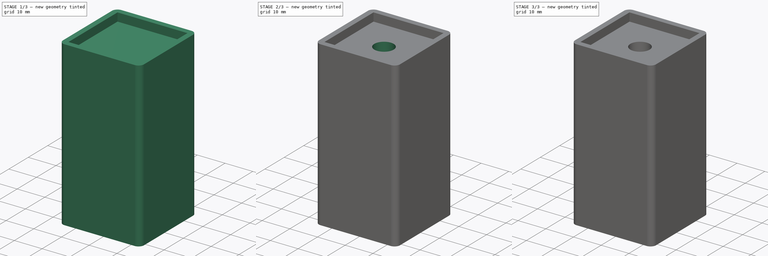
[diagram: build sequence overview — one tinted view per stage of 3, left to right]
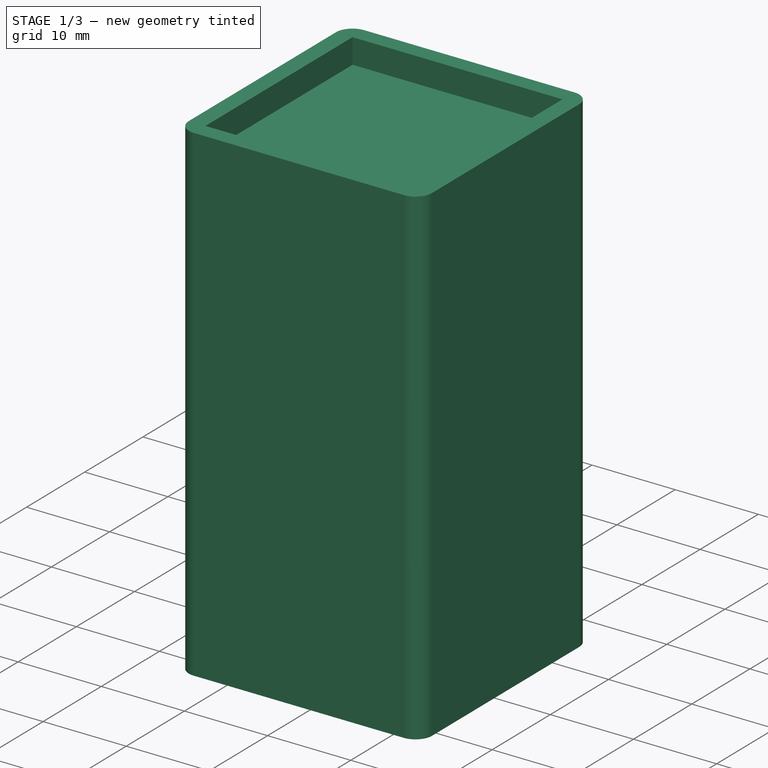
[diagram: stage 1 of 3 — iso view after this stage's code; geometry added in this stage tinted green]
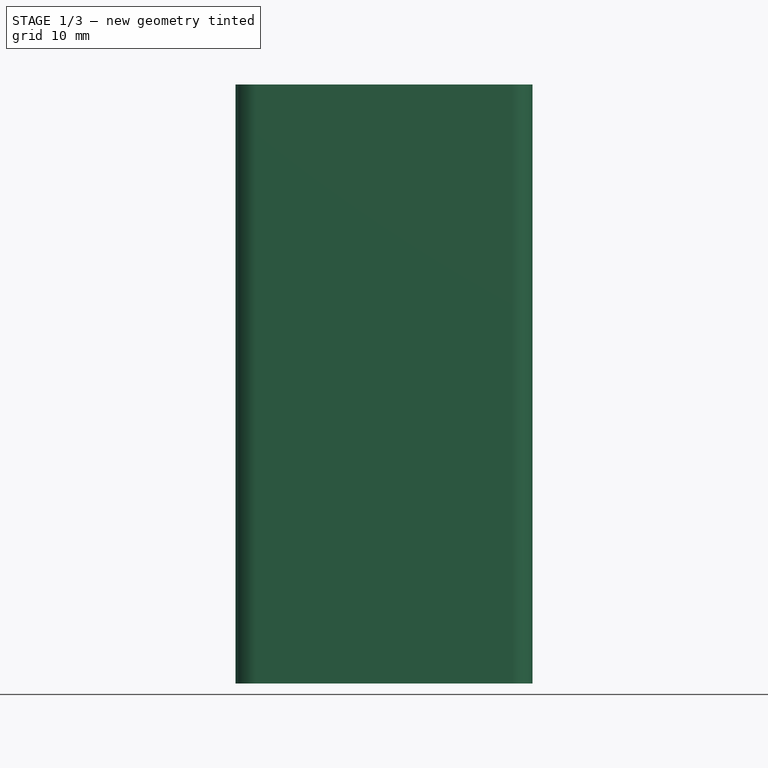
[diagram: stage 1 of 3 — front view after this stage's code; geometry added in this stage tinted green]
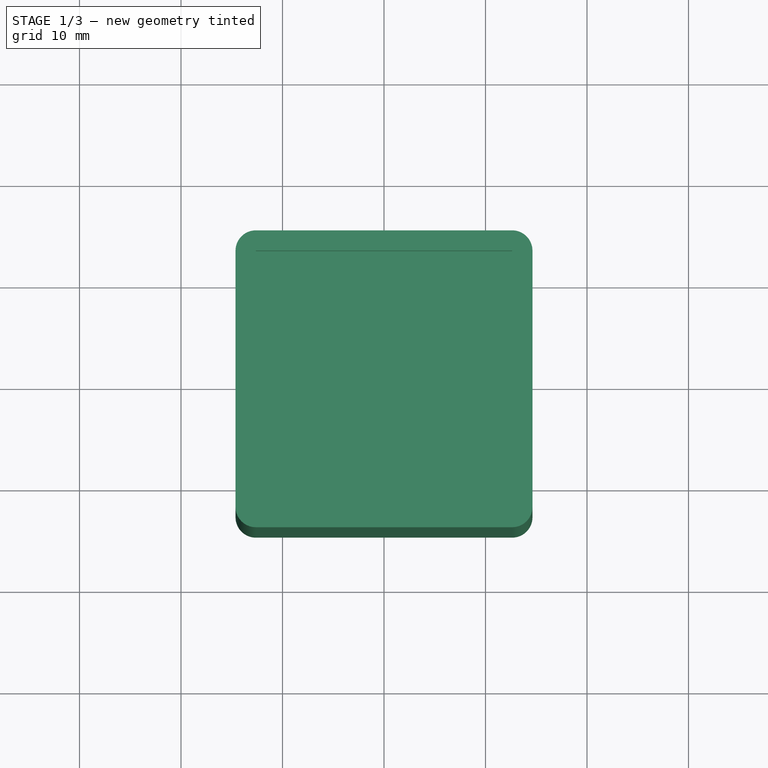
[diagram: stage 1 of 3 — top view after this stage's code; geometry added in this stage tinted green]
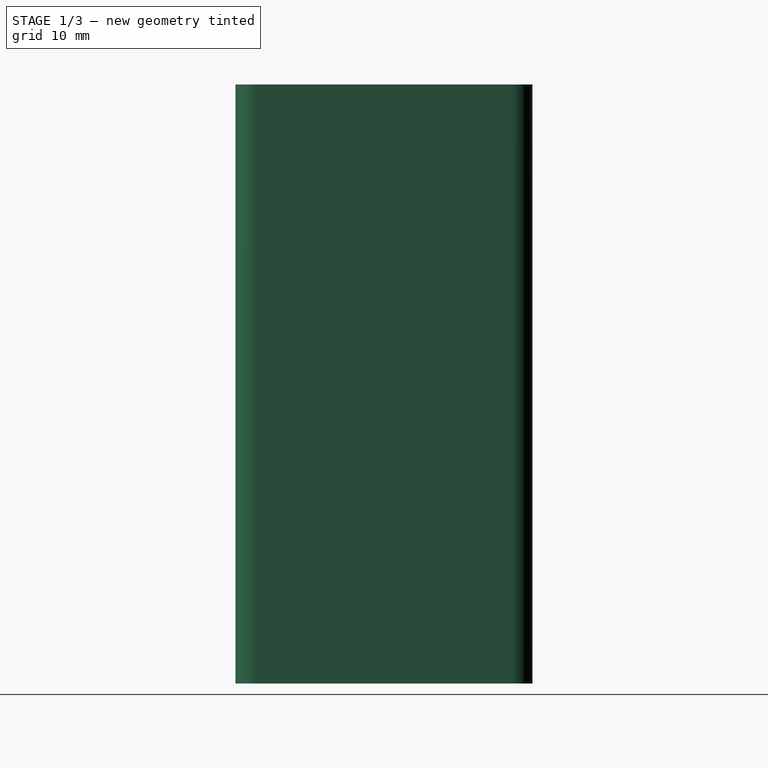
[diagram: stage 1 of 3 — right view after this stage's code; geometry added in this stage tinted green]
FCSTD DOCUMENT  (FreeCAD 0.21R33771 (Git))
Label: olvrmleveler
License: All rights reserved
LicenseURL: http://en.wikipedia.org/wiki/All_rights_reserved
objects: Sketcher::SketchObject×5, PartDesign::Pad×2, Spreadsheet::Sheet×1, PartDesign::Pocket×1, PartDesign::SubtractiveHelix×1, PartDesign::Groove×1, PartDesign::Body×1
note: 16 computed .brp shape members not serialized (recipe doc carries the construction recipe); baked Part::Feature solids carry a one-line shape summary decoded from their .brp

FEATURE [Sketcher::SketchObject] Sketch
  FullyConstrained = false
  MapMode = 5
  Support = -> [XY_Plane]
  expr: Constraints[17] = Spreadsheet.legWidth
  expr: Constraints[38] = Spreadsheet.supportWidth
  expr: Constraints[39] = Spreadsheet.supportWidth
  expr: Constraints[40] = Spreadsheet.supportWidth
  expr: Constraints[8] = Spreadsheet.totalWidth
  sketch-geometry (16):
    g0: LineSegment StartX=-14.625 StartY=14.625 StartZ=0 EndX=14.625 EndY=14.625 EndZ=0
    g1: LineSegment StartX=14.625 StartY=14.625 StartZ=0 EndX=14.625 EndY=-14.625 EndZ=0
    g2: LineSegment StartX=14.625 StartY=-14.625 StartZ=0 EndX=-13.75 EndY=-14.625 EndZ=0
    g3: LineSegment StartX=-14.625 StartY=-13.75 StartZ=0 EndX=-14.625 EndY=14.625 EndZ=0
    g4: LineSegment StartX=-12.625 StartY=12.625 StartZ=0 EndX=12.625 EndY=12.625 EndZ=0
    g5: LineSegment StartX=12.625 StartY=12.625 StartZ=0 EndX=12.625 EndY=-12.625 EndZ=0
    g6: LineSegment StartX=12.625 StartY=-12.625 StartZ=0 EndX=-12.625 EndY=-12.625 EndZ=0
    g7: LineSegment StartX=-12.625 StartY=-12.625 StartZ=0 EndX=-12.625 EndY=12.625 EndZ=0
    g8: ArcOfCircle CenterX=-12.625 CenterY=12.625 CenterZ=0 NormalX=0 NormalY=0 NormalZ=1 AngleXU=0 Radius=2 StartAngle=1.5708 EndAngle=3.14159
    g9: ArcOfCircle CenterX=12.625 CenterY=12.625 CenterZ=0 NormalX=0 NormalY=0 NormalZ=1 AngleXU=0 Radius=2 StartAngle=0 EndAngle=1.5708
    g10: ArcOfCircle CenterX=12.625 CenterY=-12.625 CenterZ=0 NormalX=0 NormalY=0 NormalZ=1 AngleXU=0 Radius=2 StartAngle=4.71239 EndAngle=6.28319
    g11: ArcOfCircle CenterX=-12.625 CenterY=-12.625 CenterZ=0 NormalX=0 NormalY=0 NormalZ=1 AngleXU=0 Radius=2 StartAngle=3.14159 EndAngle=4.71239
    g12: LineSegment StartX=-14.625 StartY=12.625 StartZ=0 EndX=-14.625 EndY=-12.625 EndZ=0
    g13: LineSegment StartX=-12.625 StartY=-14.625 StartZ=0 EndX=12.625 EndY=-14.625 EndZ=0
    g14: LineSegment StartX=14.625 StartY=-12.625 StartZ=0 EndX=14.625 EndY=12.625 EndZ=0
    g15: LineSegment StartX=12.625 StartY=14.625 StartZ=0 EndX=-12.625 EndY=14.625 EndZ=0
  constraints (41):
    c: Coincident(g0,g1)
    c: Coincident(g1,g2)
    c: Coincident(g3,g0)
    c: Horizontal(g2)
    c: Vertical(g3)
    c: Equal(g1,g0)
    c: Symmetric(g0,g0,g-2)
    c: Symmetric(g1,g0,g-1)
    c: DistanceX(g0,g0) = 29.25
    c: Coincident(g4,g5)
    c: Coincident(g5,g6)
    c: Coincident(g6,g7)
    c: Coincident(g7,g4)
    c: Horizontal(g6)
    c: Vertical(g7)
    c: Symmetric(g4,g4,g-2)
    c: Symmetric(g4,g5,g-1)
    c: DistanceX(g4,g4) = 25.25
    c: Equal(g4,g5)
    c: Coincident(g8,g4)
    c: Tangent(g8,g0)
    c: Coincident(g9,g4)
    c: Coincident(g10,g5)
    c: Coincident(g11,g6)
    c: Tangent(g11,g2)
    c: PointOnObject(g12,g3)
    c: Vertical(g12)
    c: PointOnObject(g13,g10)
    c: Horizontal(g13)
    c: Coincident(g8,g12)
    c: Tangent(g10,g2) = 1.5708
    c: Tangent(g11,g13) = -1.5708
    c: Coincident(g11,g12)
    c: Tangent(g14,g10) = -1.5708
    c: Coincident(g9,g14)
    c: Coincident(g9,g15)
    c: Coincident(g15,g8)
    c: Horizontal(g15)
    c: Distance(g0,g9) = 2
    c: Distance(g0,g9) = 2
    c: Distance(g8,g0) = 2
FEATURE [Spreadsheet::Sheet] Spreadsheet
  cells = A2='origLegWidth; B2(origLegWidth)=25; A3='legAdj; B3(legAdj)=0.25; A5='legWidth; B5(legWidth)==origLegWidth + legAdj; A6='supportDepth; B6(supportDepth)=3; A7='supportWidth; B7(supportWidth)=2; A8='totalWidth; B8(totalWidth)==legWidth + supportWidth * 2; A10='totalHeight; B10(totalHeight)==56 + supportDepth; C10=56; A11='innerHeight; B11(innerHeight)==totalHeight - supportDepth; A14='holeR; B14(holeR)==4 + 0.5; A15='holeGroveDist; B15(holeGroveDist)==10 / 8; A16='holeInnerR; B16(holeInnerR)==holeR - 1
FEATURE [PartDesign::Pad] Pad
  Direction = (0,0,1)
  Length = 59
  Length2 = 10
  Profile = -> Sketch
  ReferenceAxis = -> Sketch [N_Axis]
  Type = 0
  expr: Length = Spreadsheet.totalHeight
FEATURE [Sketcher::SketchObject] Sketch001
  FullyConstrained = true
  MapMode = 5
  Support = -> [XY_Plane]
  expr: Constraints[9] = Spreadsheet.legWidth
  sketch-geometry (4):
    g0: LineSegment StartX=-12.625 StartY=12.625 StartZ=0 EndX=12.625 EndY=12.625 EndZ=0
    g1: LineSegment StartX=12.625 StartY=12.625 StartZ=0 EndX=12.625 EndY=-12.625 EndZ=0
    g2: LineSegment StartX=12.625 StartY=-12.625 StartZ=0 EndX=-12.625 EndY=-12.625 EndZ=0
    g3: LineSegment StartX=-12.625 StartY=-12.625 StartZ=0 EndX=-12.625 EndY=12.625 EndZ=0
  constraints (10):
    c: Coincident(g0,g1)
    c: Coincident(g1,g2)
    c: Coincident(g2,g3)
    c: Coincident(g3,g0)
    c: Horizontal(g2)
    c: Vertical(g3)
    c: Symmetric(g0,g1,g-1)
    c: Symmetric(g0,g0,g-2)
    c: Equal(g0,g1)
    c: DistanceX(g0,g0) = 25.25
FEATURE [PartDesign::Pad] Pad001
  BaseFeature = -> Pad
  Direction = (0,0,1)
  Length = 56
  Length2 = 10
  Profile = -> Sketch001
  ReferenceAxis = -> Sketch001 [N_Axis]
  Type = 0
  expr: Length = Spreadsheet.innerHeight
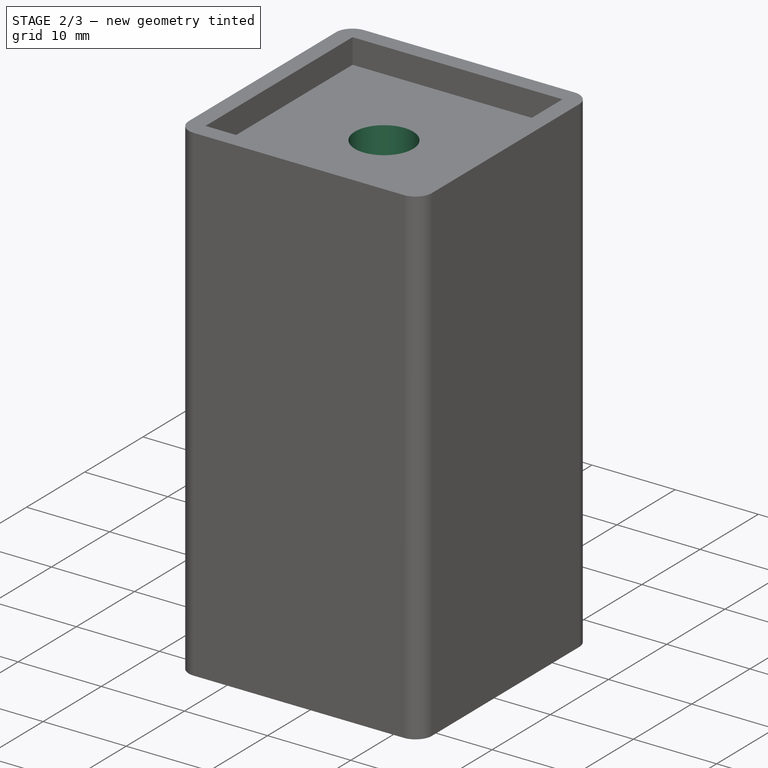
[diagram: stage 2 of 3 — iso view after this stage's code; geometry added in this stage tinted green]
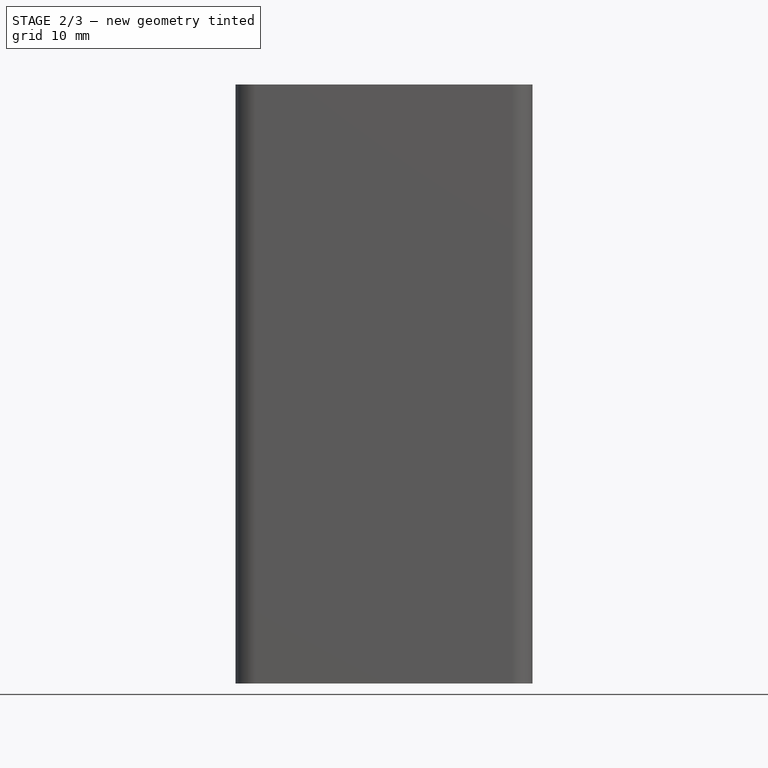
[diagram: stage 2 of 3 — front view after this stage's code; geometry added in this stage tinted green]
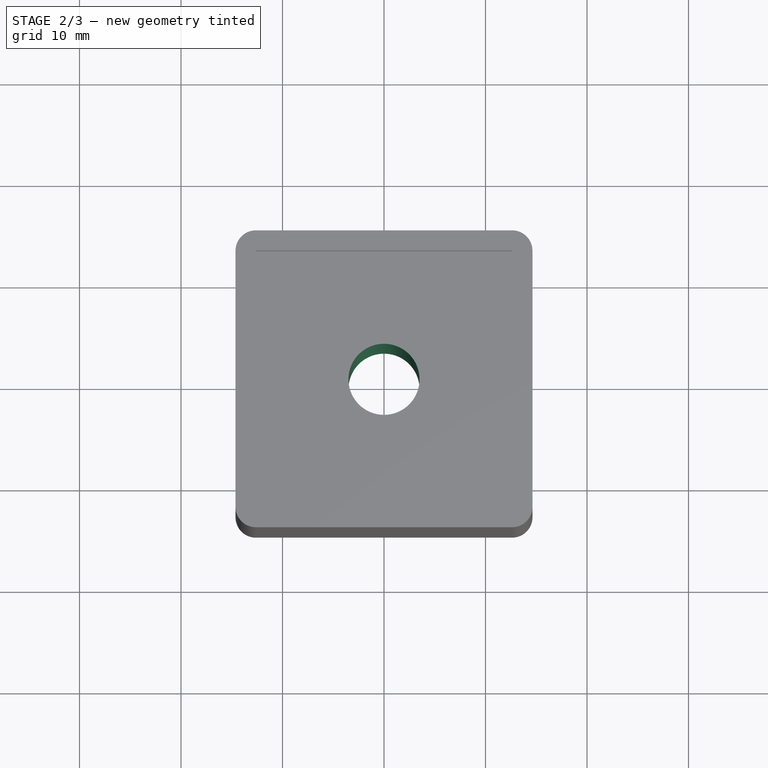
[diagram: stage 2 of 3 — top view after this stage's code; geometry added in this stage tinted green]
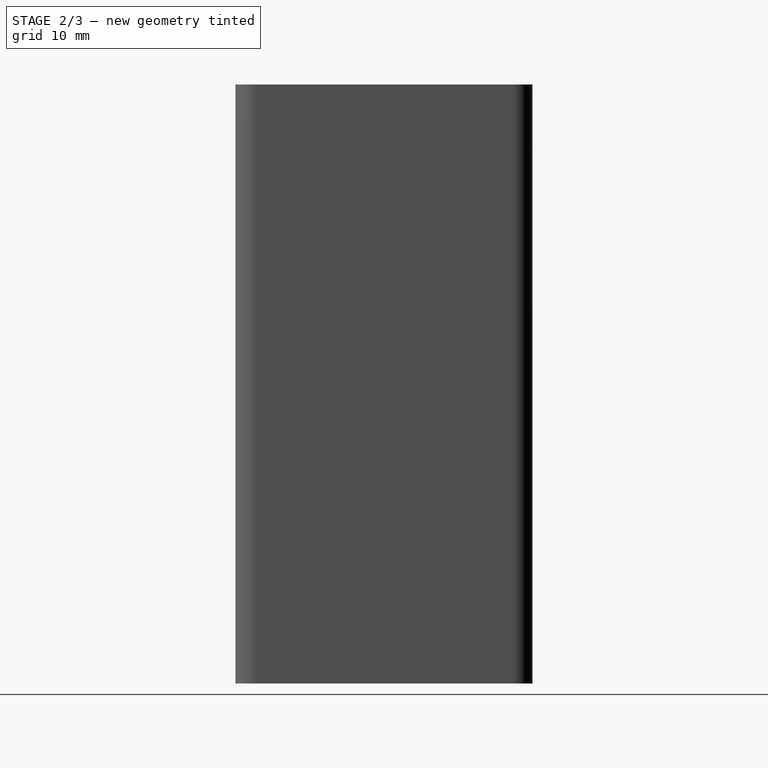
[diagram: stage 2 of 3 — right view after this stage's code; geometry added in this stage tinted green]
FEATURE [Sketcher::SketchObject] Sketch002
  FullyConstrained = true
  MapMode = 5
  Support = -> [XY_Plane]
  expr: Constraints[1] = Spreadsheet.holeInnerR
  sketch-geometry (1):
    g0: Circle CenterX=0 CenterY=0 CenterZ=0 NormalX=0 NormalY=0 NormalZ=1 AngleXU=0 Radius=3.5
  constraints (2):
    c: Coincident(g0,g-1)
    c: Radius(g0) = 3.5
FEATURE [PartDesign::Pocket] Pocket
  BaseFeature = -> Pad001
  Direction = (0,0,-1)
  Length = 5
  Length2 = 5
  Midplane = true
  Profile = -> Sketch002
  ReferenceAxis = -> Sketch002 [N_Axis]
  Type = 1
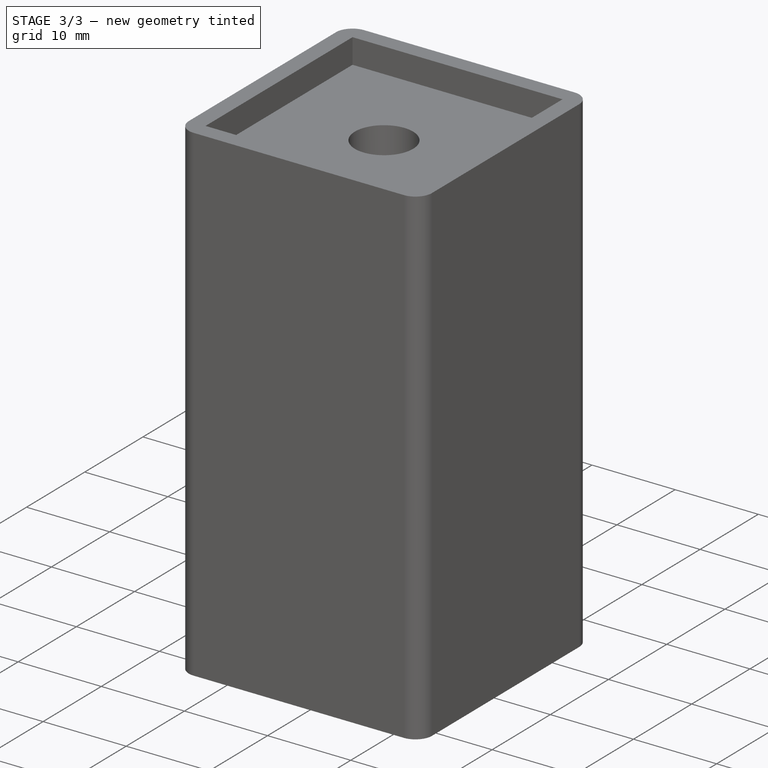
[diagram: stage 3 of 3 — iso view after this stage's code; geometry added in this stage tinted green]
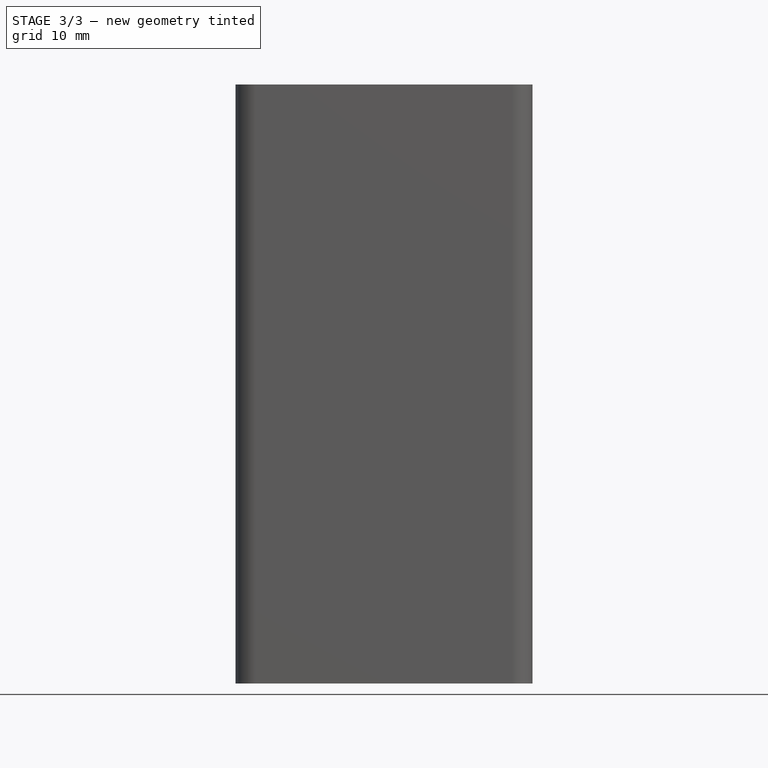
[diagram: stage 3 of 3 — front view after this stage's code; geometry added in this stage tinted green]
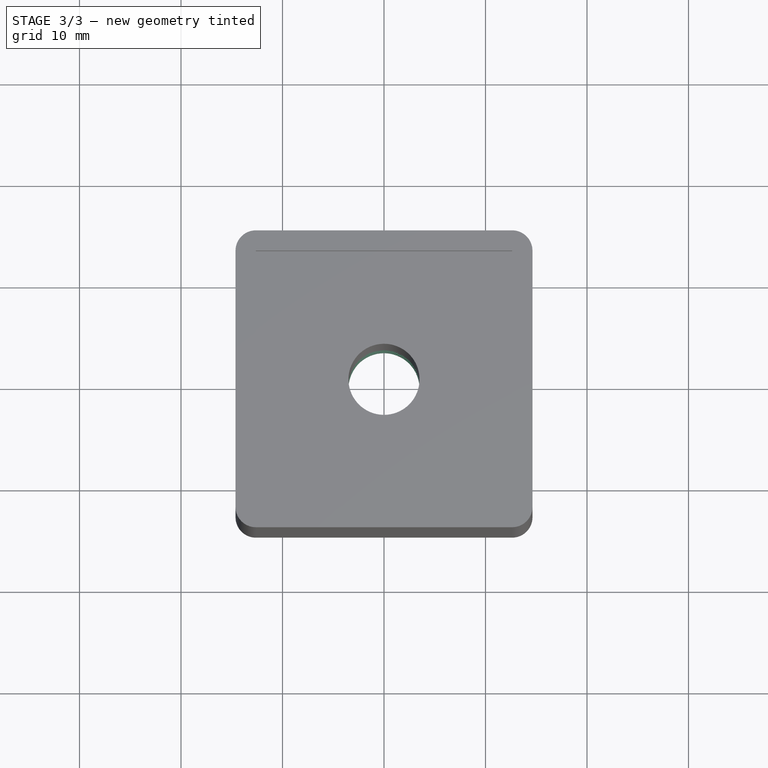
[diagram: stage 3 of 3 — top view after this stage's code; geometry added in this stage tinted green]
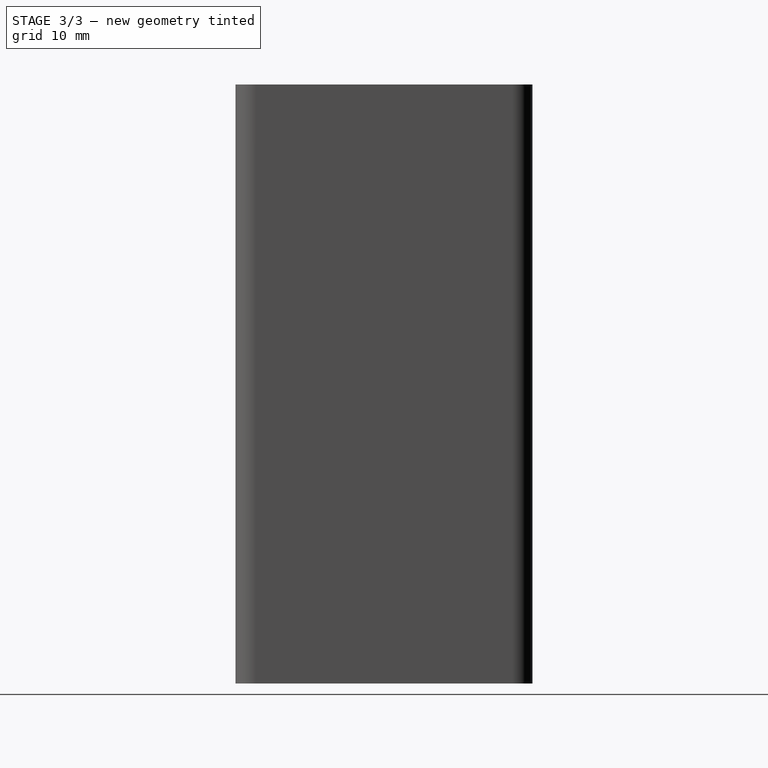
[diagram: stage 3 of 3 — right view after this stage's code; geometry added in this stage tinted green]
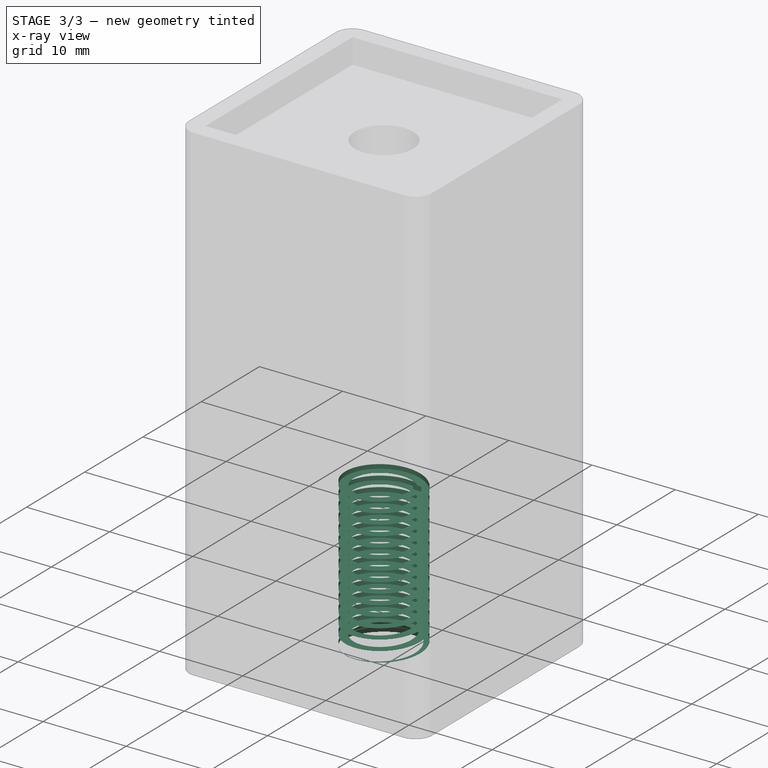
[diagram: stage 3 of 3 — x-ray composite at the iso view; earlier geometry ghosted, this stage's added geometry solid]
FEATURE [Sketcher::SketchObject] Sketch003
  FullyConstrained = true
  MapMode = 5
  Placement = pos=(0,0,0) rot=(1,0,0;1.5708rad)
  Support = -> [XZ_Plane]
  expr: Constraints[1] = Spreadsheet.holeGroveDist - 0.25
  expr: Constraints[2] = Spreadsheet.holeR
  sketch-geometry (4):
    g0: LineSegment StartX=0 StartY=-1 StartZ=0 EndX=4.5 EndY=-1 EndZ=0
    g1: LineSegment StartX=4.5 StartY=-0.5 StartZ=0 EndX=0 EndY=0 EndZ=0
    g2: LineSegment StartX=0 StartY=0 StartZ=0 EndX=0 EndY=-1 EndZ=0
    g3: LineSegment StartX=4.5 StartY=-1 StartZ=0 EndX=4.5 EndY=-0.5 EndZ=0
  constraints (11):
    c: Vertical(g2)
    c: DistanceY(g2,g2) = 1
    c: DistanceX(g0,g0) = 4.5
    c: Horizontal(g0)
    c: Coincident(g1,g-1)
    c: Coincident(g2,g1)
    c: Coincident(g2,g0)
    c: Coincident(g3,g0)
    c: Coincident(g3,g1)
    c: Vertical(g3)
    c: DistanceY(g3,g3) = 0.5
FEATURE [PartDesign::SubtractiveHelix] SubtractiveHelix
  Angle = 0
  Axis = (0,2e-16,1)
  Base = (0,0,0)
  BaseFeature = -> Pocket
  Growth = 0
  HasBeenEdited = true
  Height = 20
  LeftHanded = false
  Mode = 0
  Outside = false
  Pitch = 1.25
  Profile = -> Sketch003
  ReferenceAxis = -> Sketch003 [V_Axis]
  Turns = 16
  expr: Pitch = Spreadsheet.holeGroveDist
FEATURE [Sketcher::SketchObject] Sketch004
  FullyConstrained = true
  MapMode = 5
  Placement = pos=(0,0,0) rot=(1,0,0;1.5708rad)
  Support = -> [XZ_Plane]
  expr: Constraints[2] = Spreadsheet.holeR + 1
  expr: Constraints[7] = Spreadsheet.holeR + 1
  sketch-geometry (3):
    g0: LineSegment StartX=0 StartY=0 StartZ=0 EndX=-5.5 EndY=0 EndZ=0
    g1: LineSegment StartX=0 StartY=0 StartZ=0 EndX=0 EndY=5.5 EndZ=0
    g2: LineSegment StartX=0 StartY=5.5 StartZ=0 EndX=-5.5 EndY=0 EndZ=0
  constraints (8):
    c: Coincident(g0,g-1)
    c: PointOnObject(g0,g-1)
    c: DistanceX(g0,g0) = 5.5
    c: Coincident(g1,g0)
    c: Vertical(g1)
    c: Coincident(g2,g1)
    c: Coincident(g2,g0)
    c: DistanceY(g1,g1) = 5.5
FEATURE [PartDesign::Groove] Groove
  Angle = 360
  Axis = (0,2e-16,1)
  Base = (0,0,0)
  BaseFeature = -> SubtractiveHelix
  Profile = -> Sketch004
  ReferenceAxis = -> Sketch004 [V_Axis]
  Reversed = true
FEATURE [PartDesign::Body] Body
  Group = -> [Sketch,Pad,Sketch001,Pad001,Sketch002,Pocket,Sketch003,SubtractiveHelix,Sketch004,Groove]
  Origin = -> Origin
  Tip = -> Groove
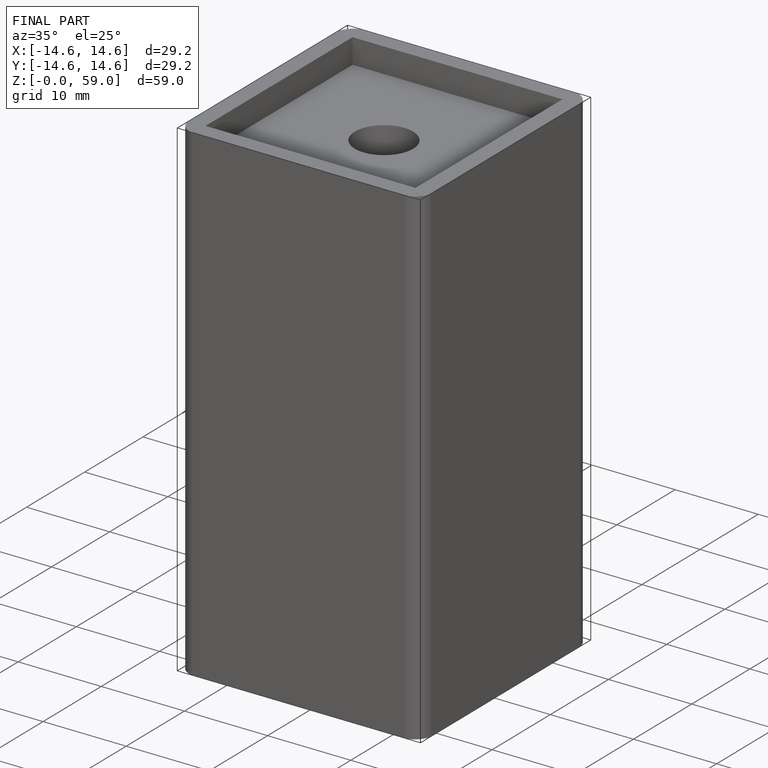
[diagram: finished part — iso view with bounding-box wireframe]
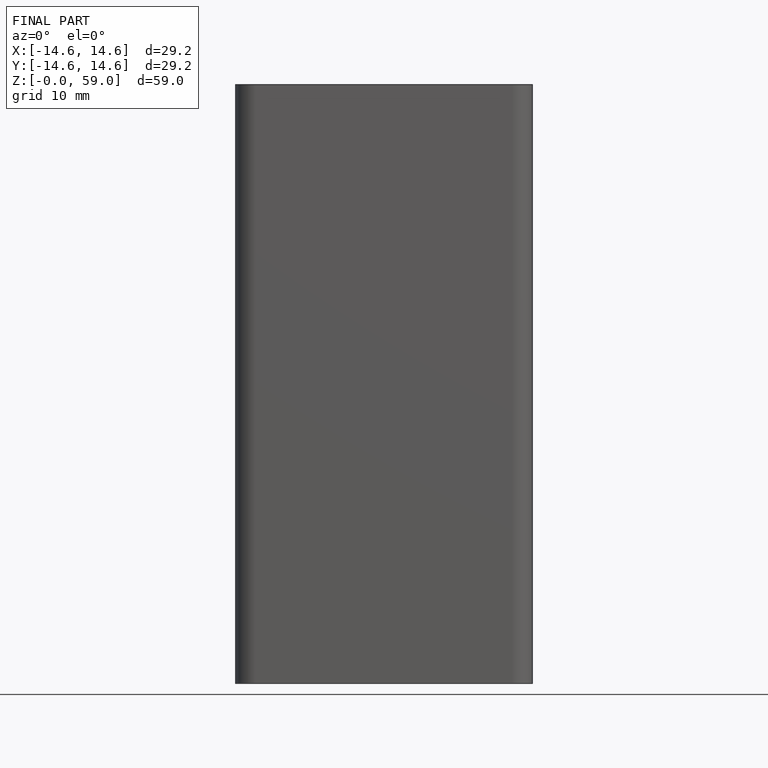
[diagram: finished part — front view with bounding-box wireframe]
